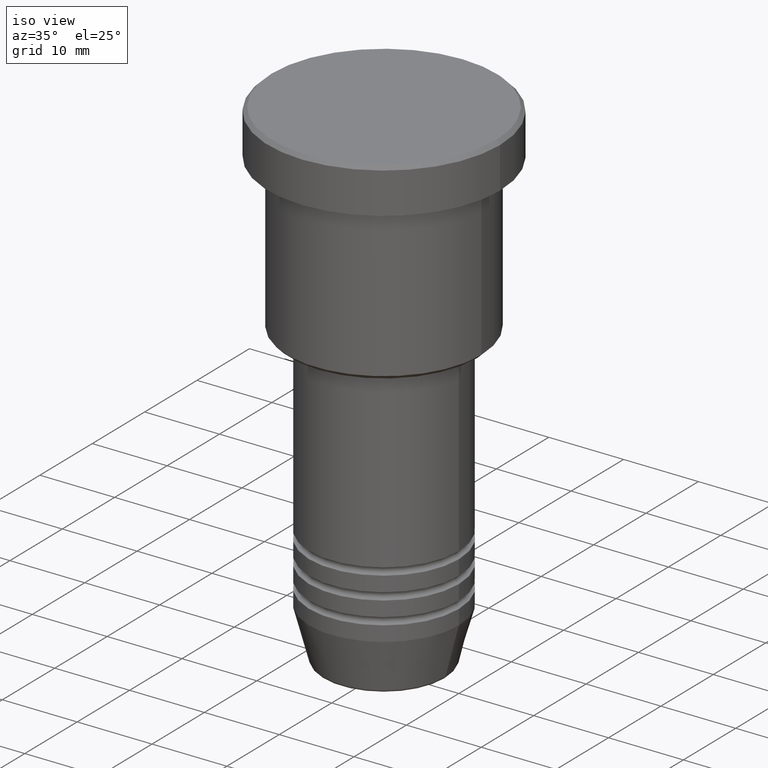
[diagram: clean part render]
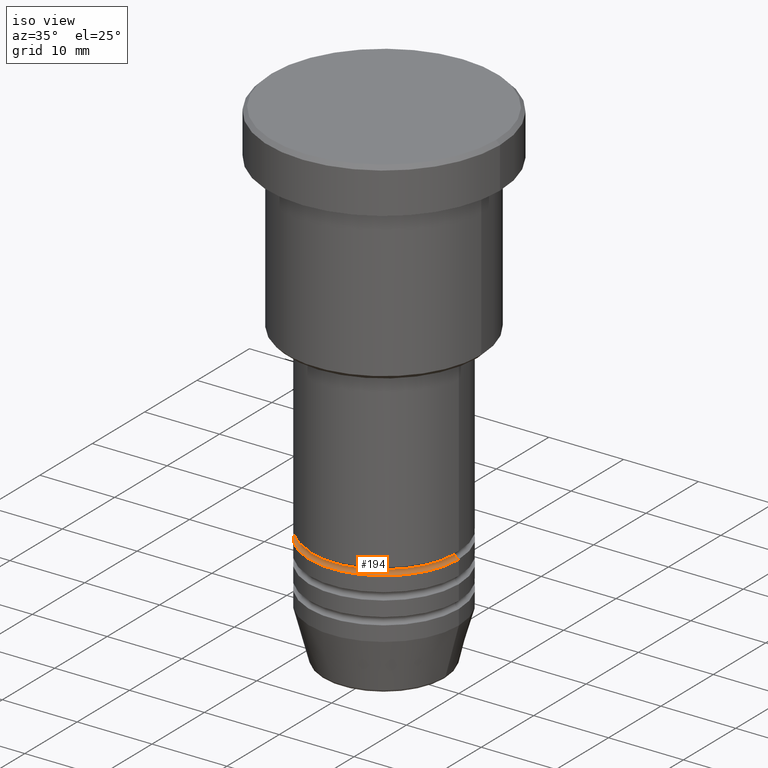
[diagram: same view with one face highlighted and labeled with its STEP entity id]
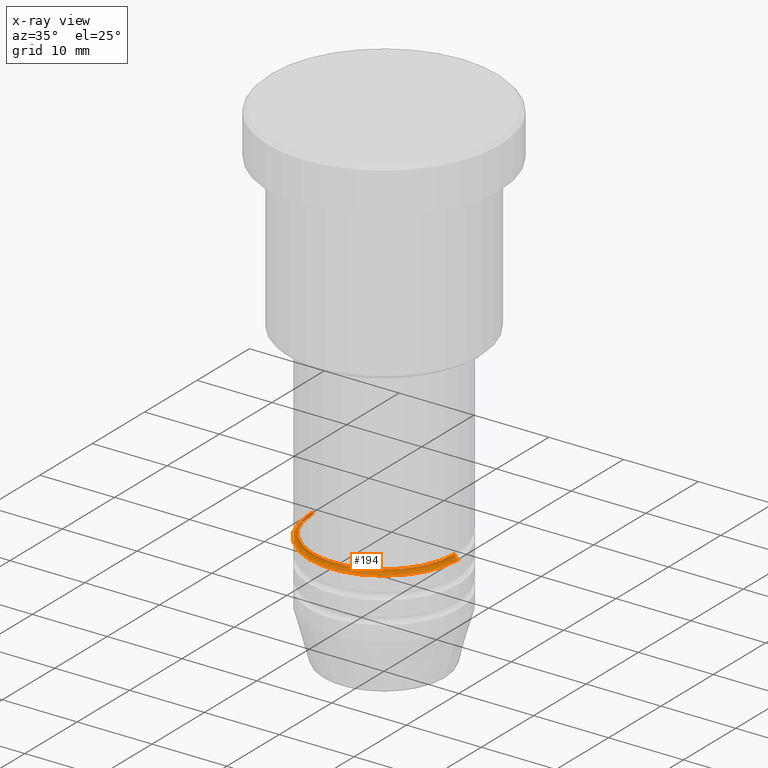
[diagram: x-ray of the same camera — body ghosted, the highlighted face saturated]
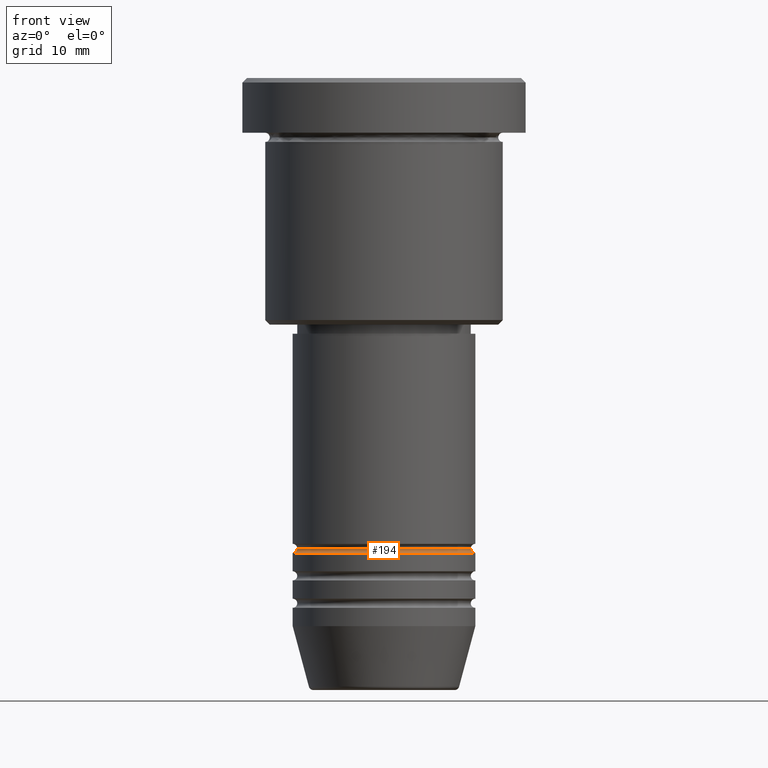
[diagram: same view with one face highlighted and labeled with its STEP entity id]
A machine part, iso view. The second image highlights one B-rep face of the part: STEP entity #194.
The next image is the same camera in x-ray: the body ghosted, the highlighted face saturated — about 2% of this face is hidden behind the body in this view.
A second angle (front view) of the same face is appended — the face is thin or edge-on in the first view.
In plain terms, the highlighted toroidal blend (fillet) surface has major radius 10 mm and minor (blend) radius 0.5 mm.
Its self-contained STEP definition (entity closure, byte-faithful):
#3 = AXIS2_PLACEMENT_3D ( 'NONE', #1065, #65, #419 ) ;
#25 = DIRECTION ( 'NONE',  ( 0.000000000000000000, 0.000000000000000000, -1.000000000000000000 ) ) ;
#39 = CARTESIAN_POINT ( 'NONE',  ( 10.00000000000000178, 0.000000000000000000, -51.49999999999997868 ) ) ;
#60 = ORIENTED_EDGE ( 'NONE', *, *, #929, .F. ) ;
#65 = DIRECTION ( 'NONE',  ( -0.000000000000000000, -0.000000000000000000, 1.000000000000000000 ) ) ;
#102 = EDGE_LOOP ( 'NONE', ( #200, #510, #379, #60 ) ) ;
#153 = AXIS2_PLACEMENT_3D ( 'NONE', #408, #1177, #417 ) ;
#194 = ADVANCED_FACE ( 'NONE', ( #902 ), #294, .F. ) ;
#200 = ORIENTED_EDGE ( 'NONE', *, *, #278, .F. ) ;
#242 = CARTESIAN_POINT ( 'NONE',  ( -9.500000000000001776, 1.194030629168669469E-15, -51.49999999999997868 ) ) ;
#278 = EDGE_CURVE ( 'NONE', #1035, #691, #682, .T. ) ;
#294 = TOROIDAL_SURFACE ( 'NONE', #3, 10.00000000000000178, 0.5000000000000000000 ) ;
#379 = ORIENTED_EDGE ( 'NONE', *, *, #588, .T. ) ;
#408 = CARTESIAN_POINT ( 'NONE',  ( 0.000000000000000000, 0.000000000000000000, -51.99999999999997868 ) ) ;
#417 = DIRECTION ( 'NONE',  ( 1.000000000000000000, 0.000000000000000000, 0.000000000000000000 ) ) ;
#419 = DIRECTION ( 'NONE',  ( 1.000000000000000000, 0.000000000000000000, 0.000000000000000000 ) ) ;
#470 = CIRCLE ( 'NONE', #492, 0.5000000000000004441 ) ;
#472 = DIRECTION ( 'NONE',  ( 0.000000000000000000, -1.000000000000000000, 0.000000000000000000 ) ) ;
#492 = AXIS2_PLACEMENT_3D ( 'NONE', #969, #1083, #689 ) ;
#510 = ORIENTED_EDGE ( 'NONE', *, *, #1048, .T. ) ;
#514 = CIRCLE ( 'NONE', #818, 0.5000000000000004441 ) ;
#588 = EDGE_CURVE ( 'NONE', #804, #1106, #778, .T. ) ;
#682 = CIRCLE ( 'NONE', #701, 9.500000000000001776 ) ;
#689 = DIRECTION ( 'NONE',  ( -1.000000000000000000, 1.224646799147353454E-16, 0.000000000000000000 ) ) ;
#691 = VERTEX_POINT ( 'NONE', #901 ) ;
#701 = AXIS2_PLACEMENT_3D ( 'NONE', #734, #819, #731 ) ;
#731 = DIRECTION ( 'NONE',  ( 1.000000000000000000, 0.000000000000000000, 0.000000000000000000 ) ) ;
#734 = CARTESIAN_POINT ( 'NONE',  ( 0.000000000000000000, 0.000000000000000000, -51.49999999999997868 ) ) ;
#778 = CIRCLE ( 'NONE', #153, 10.00000000000000000 ) ;
#804 = VERTEX_POINT ( 'NONE', #1091 ) ;
#818 = AXIS2_PLACEMENT_3D ( 'NONE', #39, #472, #25 ) ;
#819 = DIRECTION ( 'NONE',  ( -0.000000000000000000, -0.000000000000000000, 1.000000000000000000 ) ) ;
#901 = CARTESIAN_POINT ( 'NONE',  ( 9.500000000000001776, 0.000000000000000000, -51.49999999999997868 ) ) ;
#902 = FACE_OUTER_BOUND ( 'NONE', #102, .T. ) ;
#929 = EDGE_CURVE ( 'NONE', #691, #1106, #514, .T. ) ;
#969 = CARTESIAN_POINT ( 'NONE',  ( -10.00000000000000178, 1.224646799147353454E-15, -51.49999999999997868 ) ) ;
#1035 = VERTEX_POINT ( 'NONE', #242 ) ;
#1048 = EDGE_CURVE ( 'NONE', #1035, #804, #470, .T. ) ;
#1065 = CARTESIAN_POINT ( 'NONE',  ( 0.000000000000000000, 0.000000000000000000, -51.49999999999997868 ) ) ;
#1076 = CARTESIAN_POINT ( 'NONE',  ( 10.00000000000000000, 0.000000000000000000, -51.99999999999997868 ) ) ;
#1083 = DIRECTION ( 'NONE',  ( 1.224646799147353207E-16, 1.000000000000000000, 0.000000000000000000 ) ) ;
#1091 = CARTESIAN_POINT ( 'NONE',  ( -10.00000000000000000, 1.224646799147353256E-15, -51.99999999999997868 ) ) ;
#1106 = VERTEX_POINT ( 'NONE', #1076 ) ;
#1177 = DIRECTION ( 'NONE',  ( -0.000000000000000000, -0.000000000000000000, 1.000000000000000000 ) ) ;